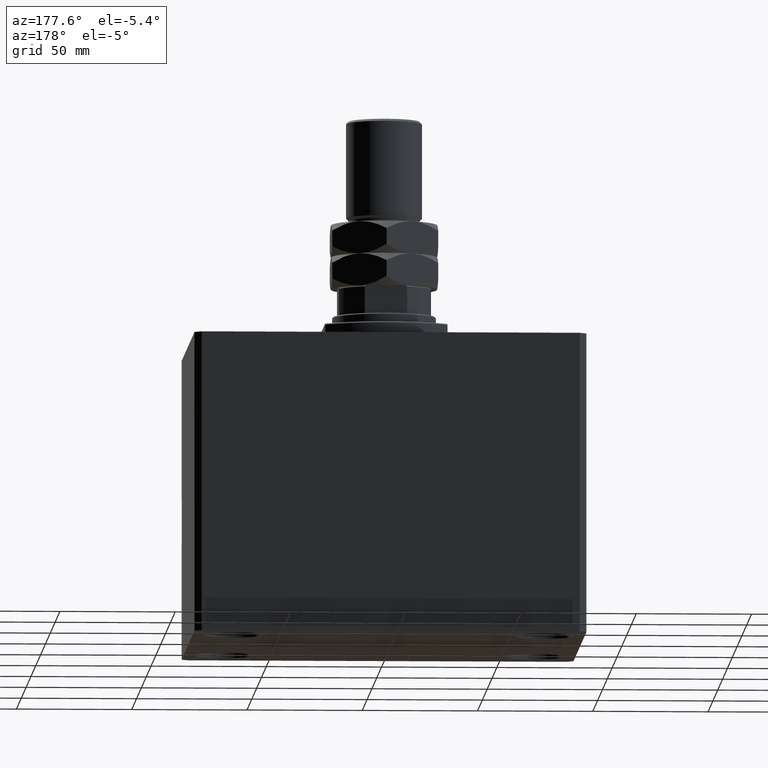
[diagram: clean part render]
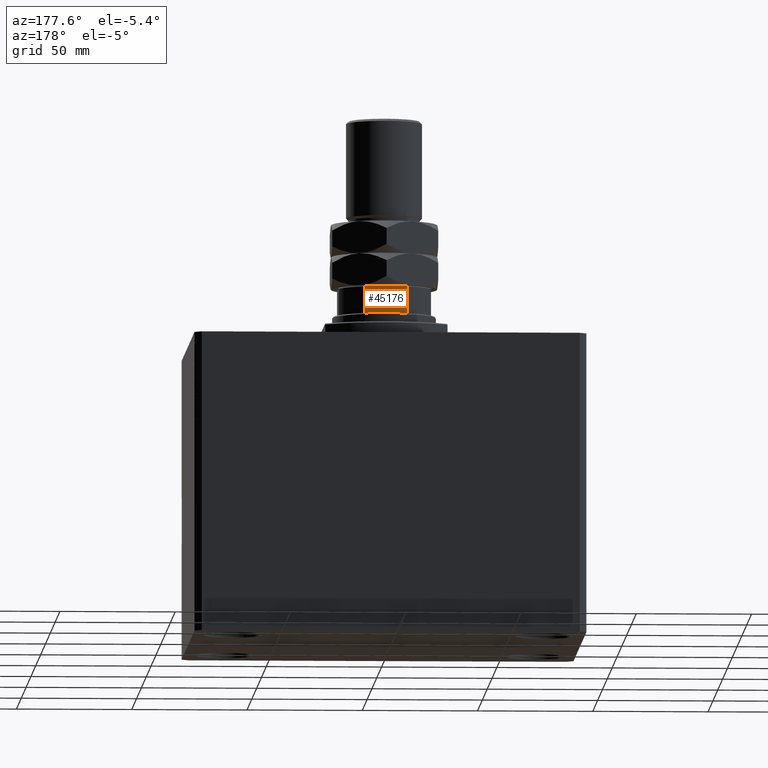
[diagram: same view with one face highlighted and labeled with its STEP entity id]
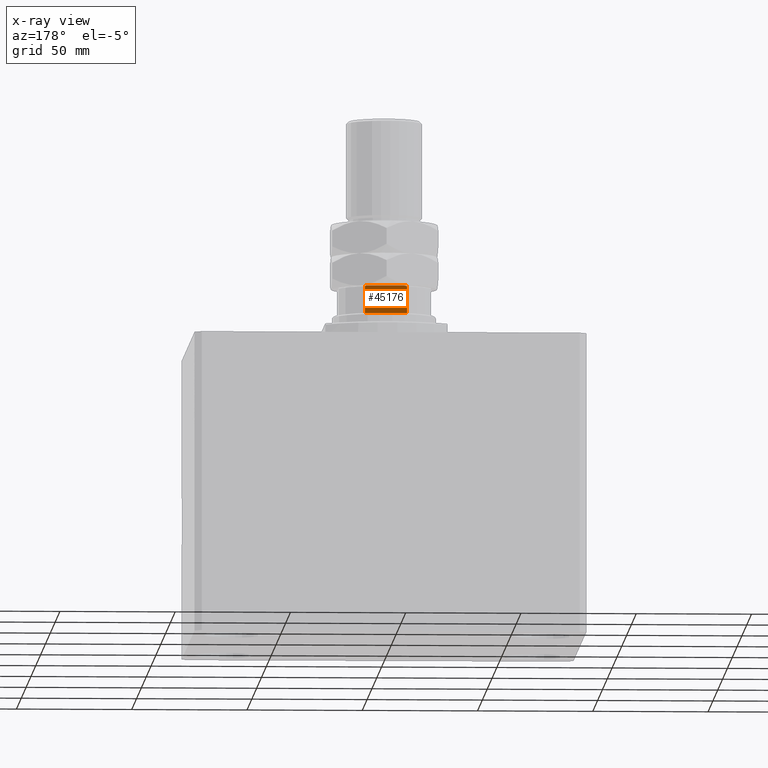
[diagram: x-ray of the same camera — body ghosted, the highlighted face saturated]
A machine part, auxiliary view. The second image highlights one B-rep face of the part: STEP entity #45176.
The next image is the same camera in x-ray: the body ghosted, the highlighted face saturated — about 0% of this face is hidden behind the body in this view.
In plain terms, the highlighted planar face has unit normal (0, -1, 0).
Its self-contained STEP definition (entity closure, byte-faithful):
#75 = PLANE ( 'NONE',  #2096 ) ;
#192 = VECTOR ( 'NONE', #9657, 1000.000000000000000 ) ;
#302 = CARTESIAN_POINT ( 'NONE',  ( -20.00000000000000355, 20.00000000000000000, 126.1000000000000227 ) ) ;
#643 = CARTESIAN_POINT ( 'NONE',  ( -7.889866919029745240, 20.00000000000000000, 126.1000000000000227 ) ) ;
#1184 = CARTESIAN_POINT ( 'NONE',  ( 7.889866919029743464, 20.00000000000000000, 126.1000000000000227 ) ) ;
#2096 = AXIS2_PLACEMENT_3D ( 'NONE', #302, #32649, #22574 ) ;
#2967 = CARTESIAN_POINT ( 'NONE',  ( 9.165151389911676105, 19.99999999999999645, 125.6622865831652831 ) ) ;
#3200 = CARTESIAN_POINT ( 'NONE',  ( 8.849170428565226842, 20.00000000000000000, 125.9446655850051968 ) ) ;
#3763 = CARTESIAN_POINT ( 'NONE',  ( -8.731041210088298143, 20.00000000000000000, 125.9862065548025214 ) ) ;
#4964 = ORIENTED_EDGE ( 'NONE', *, *, #16412, .F. ) ;
#5541 = CARTESIAN_POINT ( 'NONE',  ( -9.165151389911676105, 20.00000000000000000, 125.6000000000000227 ) ) ;
#6589 = CARTESIAN_POINT ( 'NONE',  ( -20.00000000000000355, 20.00000000000000000, 114.1000000000000085 ) ) ;
#7357 = CARTESIAN_POINT ( 'NONE',  ( -8.377106304411494619, 19.99999999999999645, 126.0787779673724884 ) ) ;
#7822 = CARTESIAN_POINT ( 'NONE',  ( -8.134263528852956782, 20.00000000000000355, 126.1000000000000512 ) ) ;
#9657 = DIRECTION ( 'NONE',  ( -0.000000000000000000, -0.000000000000000000, 1.000000000000000000 ) ) ;
#9709 = DIRECTION ( 'NONE',  ( -1.000000000000000000, -0.000000000000000000, -0.000000000000000000 ) ) ;
#11221 = VERTEX_POINT ( 'NONE', #32033 ) ;
#11882 = VERTEX_POINT ( 'NONE', #35751 ) ;
#12079 = CARTESIAN_POINT ( 'NONE',  ( -9.165151389911677882, 20.00000000000000000, 114.1000000000001364 ) ) ;
#13595 = CARTESIAN_POINT ( 'NONE',  ( -20.00000000000000355, 20.00000000000000000, 126.1000000000000227 ) ) ;
#14574 = CARTESIAN_POINT ( 'NONE',  ( -9.135943898188770618, 20.00000000000000000, 125.7204496596643111 ) ) ;
#15897 = EDGE_CURVE ( 'NONE', #45553, #11221, #44889, .T. ) ;
#16412 = EDGE_CURVE ( 'NONE', #11882, #11221, #36534, .T. ) ;
#17550 = EDGE_CURVE ( 'NONE', #36614, #38021, #45700, .T. ) ;
#20217 = LINE ( 'NONE', #31469, #192 ) ;
#20952 = CARTESIAN_POINT ( 'NONE',  ( 9.005944049512759619, 20.00000000000000000, 125.8509746237500622 ) ) ;
#21461 = DIRECTION ( 'NONE',  ( -0.000000000000000000, -0.000000000000000000, 1.000000000000000000 ) ) ;
#21665 = VERTEX_POINT ( 'NONE', #12079 ) ;
#21889 = CARTESIAN_POINT ( 'NONE',  ( 7.889866919029743464, 20.00000000000000000, 126.1000000000000227 ) ) ;
#22574 = DIRECTION ( 'NONE',  ( 0.000000000000000000, -0.000000000000000000, -1.000000000000000000 ) ) ;
#24539 = CARTESIAN_POINT ( 'NONE',  ( 8.731854386667052381, 20.00000000000000000, 125.9859761974169743 ) ) ;
#25244 = ORIENTED_EDGE ( 'NONE', *, *, #30698, .T. ) ;
#25349 = CARTESIAN_POINT ( 'NONE',  ( -8.847700323750238738, 20.00000000000000000, 125.9454059445000382 ) ) ;
#25755 = CARTESIAN_POINT ( 'NONE',  ( 9.165151389911676105, 20.00000000000000000, -0.001000000000001000089 ) ) ;
#26047 = CARTESIAN_POINT ( 'NONE',  ( -9.055524318101884518, 20.00000000000000355, 125.8141986763098004 ) ) ;
#28197 = DIRECTION ( 'NONE',  ( -1.000000000000000000, -0.000000000000000000, -0.000000000000000000 ) ) ;
#28372 = CARTESIAN_POINT ( 'NONE',  ( 9.056020599733276555, 20.00000000000000000, 125.8137161059354412 ) ) ;
#28741 = EDGE_CURVE ( 'NONE', #21665, #36614, #20217, .T. ) ;
#30698 = EDGE_CURVE ( 'NONE', #11882, #21665, #39402, .T. ) ;
#31469 = CARTESIAN_POINT ( 'NONE',  ( -9.165151389911676105, 20.00000000000000000, -0.001000000000001000089 ) ) ;
#31489 = ORIENTED_EDGE ( 'NONE', *, *, #38320, .F. ) ;
#32033 = CARTESIAN_POINT ( 'NONE',  ( 9.165151389911676105, 20.00000000000000000, 125.6000000000000227 ) ) ;
#32036 = ORIENTED_EDGE ( 'NONE', *, *, #15897, .T. ) ;
#32649 = DIRECTION ( 'NONE',  ( 0.000000000000000000, -1.000000000000000000, 0.000000000000000000 ) ) ;
#34681 = ORIENTED_EDGE ( 'NONE', *, *, #28741, .T. ) ;
#35560 = CARTESIAN_POINT ( 'NONE',  ( 8.376270842886095025, 20.00000000000000000, 126.0790317661354152 ) ) ;
#35751 = CARTESIAN_POINT ( 'NONE',  ( 9.165151389911676105, 20.00000000000000000, 114.1000000000001364 ) ) ;
#35792 = CARTESIAN_POINT ( 'NONE',  ( 9.135966866521640029, 19.99999999999999645, 125.7203262903150716 ) ) ;
#36481 = FACE_OUTER_BOUND ( 'NONE', #42037, .T. ) ;
#36534 = LINE ( 'NONE', #25755, #42951 ) ;
#36614 = VERTEX_POINT ( 'NONE', #5541 ) ;
#36935 = VECTOR ( 'NONE', #9709, 1000.000000000000000 ) ;
#37038 = VECTOR ( 'NONE', #28197, 1000.000000000000000 ) ;
#38021 = VERTEX_POINT ( 'NONE', #39432 ) ;
#38320 = EDGE_CURVE ( 'NONE', #45553, #38021, #43041, .T. ) ;
#39402 = LINE ( 'NONE', #6589, #36935 ) ;
#39432 = CARTESIAN_POINT ( 'NONE',  ( -7.889866919029745240, 20.00000000000000000, 126.1000000000000227 ) ) ;
#40643 = CARTESIAN_POINT ( 'NONE',  ( -9.005650948982575343, 20.00000000000000355, 125.8512182151569334 ) ) ;
#40883 = CARTESIAN_POINT ( 'NONE',  ( -9.165151389911676105, 20.00000000000000000, 125.6000000000000227 ) ) ;
#42037 = EDGE_LOOP ( 'NONE', ( #31489, #32036, #4964, #25244, #34681, #45680 ) ) ;
#42951 = VECTOR ( 'NONE', #21461, 1000.000000000000000 ) ;
#43041 = LINE ( 'NONE', #13595, #37038 ) ;
#44487 = CARTESIAN_POINT ( 'NONE',  ( -9.165151389911674329, 19.99999999999999645, 125.6624095850606437 ) ) ;
#44889 = B_SPLINE_CURVE_WITH_KNOTS ( 'NONE', 3,
 ( #21889, #47039, #35560, #24539, #3200, #20952, #28372, #35792, #2967, #47278 ),
 .UNSPECIFIED., .F., .F.,
 ( 4, 2, 2, 2, 4 ),
 ( 1.734723475976807094E-18, 0.0007281986681936633739, 0.001092298002290502000, 0.001274347669338919253, 0.001456397336387336289 ),
 .UNSPECIFIED. ) ;
#45176 = ADVANCED_FACE ( 'NONE', ( #36481 ), #75, .F. ) ;
#45553 = VERTEX_POINT ( 'NONE', #1184 ) ;
#45680 = ORIENTED_EDGE ( 'NONE', *, *, #17550, .T. ) ;
#45700 = B_SPLINE_CURVE_WITH_KNOTS ( 'NONE', 3,
 ( #40883, #44487, #14574, #26047, #40643, #25349, #3763, #7357, #7822, #643 ),
 .UNSPECIFIED., .F., .F.,
 ( 4, 2, 2, 2, 4 ),
 ( 0.000000000000000000, 0.0001842078696388121408, 0.0003684157392776242815, 0.0007368314785552102907, 0.001473662957110382201 ),
 .UNSPECIFIED. ) ;
#47039 = CARTESIAN_POINT ( 'NONE',  ( 8.134318822980977970, 19.99999999999999645, 126.1000000000000512 ) ) ;
#47278 = CARTESIAN_POINT ( 'NONE',  ( 9.165151389911676105, 20.00000000000000000, 125.6000000000000227 ) ) ;